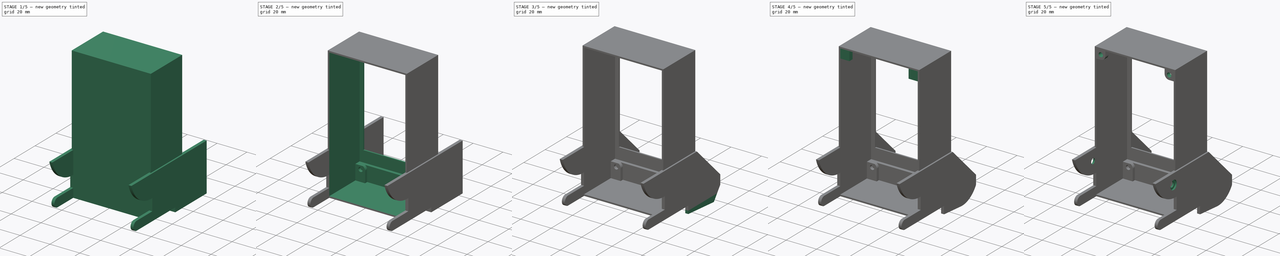
[diagram: build sequence overview — one tinted view per stage of 5, left to right]
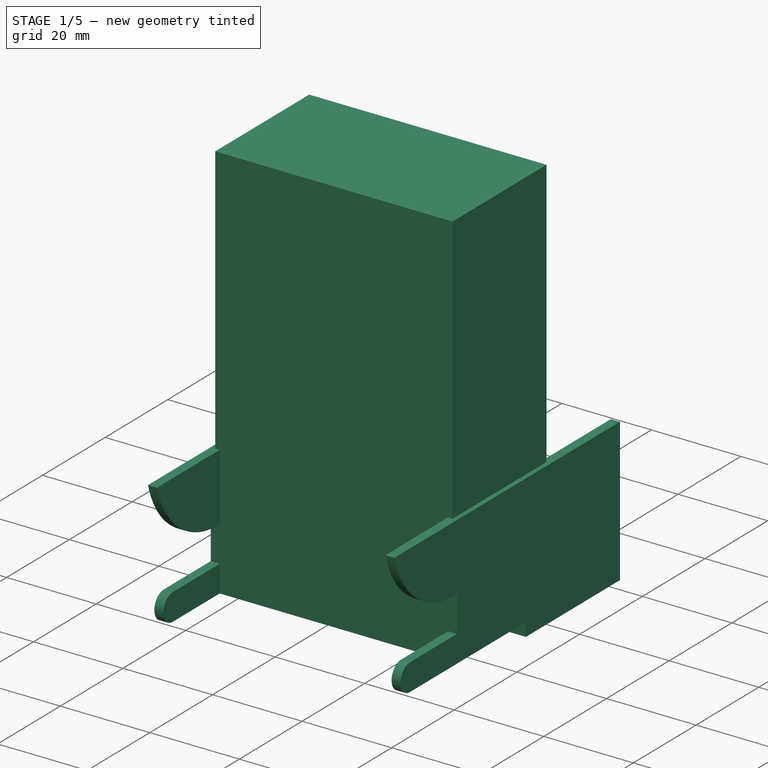
[diagram: stage 1 of 5 — iso view after this stage's code; geometry added in this stage tinted green]
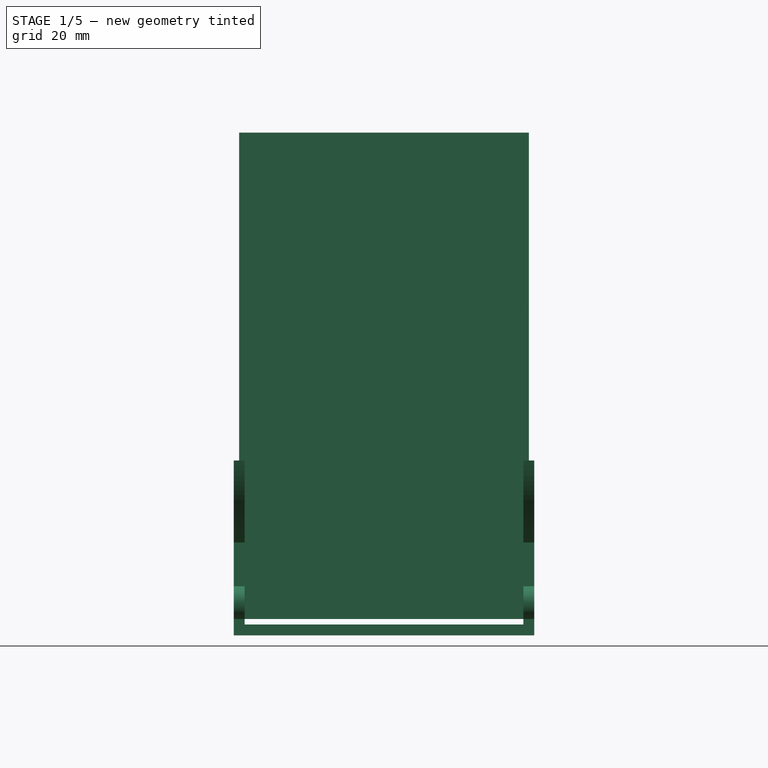
[diagram: stage 1 of 5 — front view after this stage's code; geometry added in this stage tinted green]
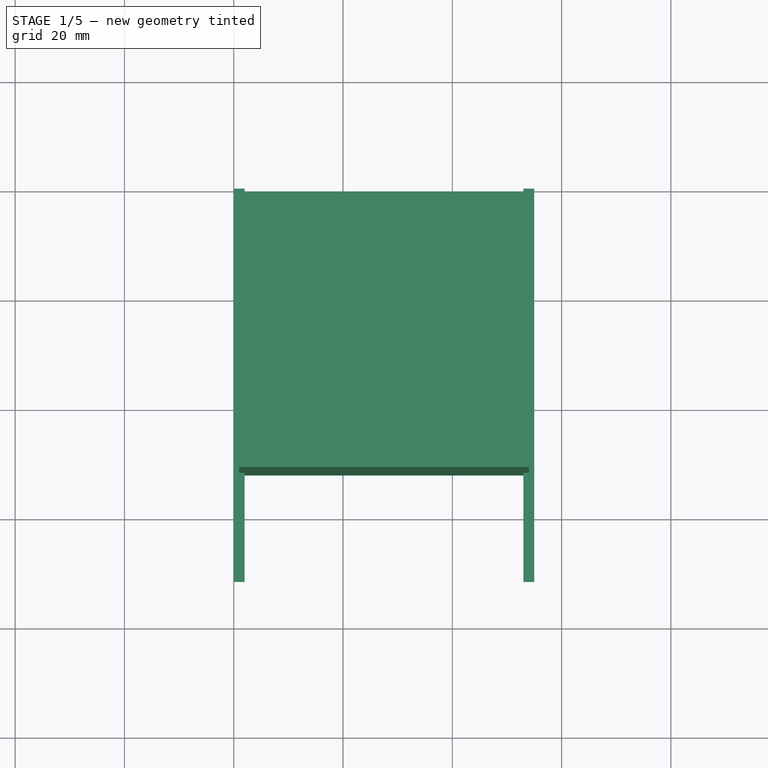
[diagram: stage 1 of 5 — top view after this stage's code; geometry added in this stage tinted green]
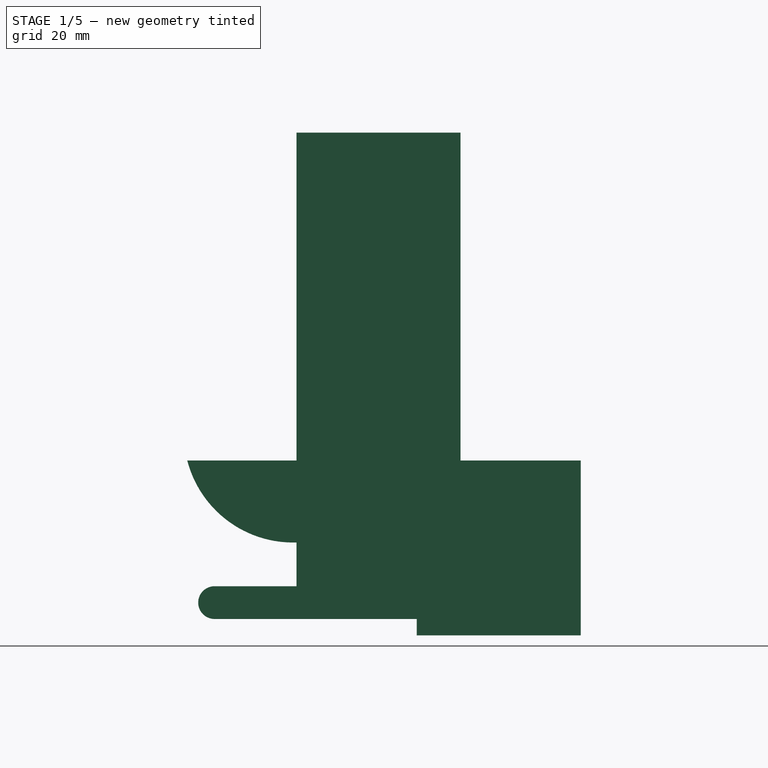
[diagram: stage 1 of 5 — right view after this stage's code; geometry added in this stage tinted green]
FCSTD DOCUMENT  (FreeCAD 0.19R)
Label: screen_case_front
License: All rights reserved
LicenseURL: http://en.wikipedia.org/wiki/All_rights_reserved
objects: Sketcher::SketchObject×17, PartDesign::Pocket×13, PartDesign::Pad×7, PartDesign::Fillet×3, PartDesign::Body×1
note: 64 computed .brp shape members not serialized (recipe doc carries the construction recipe); baked Part::Feature solids carry a one-line shape summary decoded from their .brp

FEATURE [Sketcher::SketchObject] Sketch
  FullyConstrained = true
  MapMode = 5
  Placement = pos=(0,0,0) rot=(0.57735,0.57735,0.57735;2.0944rad)
  Support = -> [YZ_Plane]
  sketch-geometry (9):
    g0: LineSegment StartX=0 StartY=0 StartZ=0 EndX=-30 EndY=0 EndZ=0
    g1: LineSegment StartX=-30 StartY=0 StartZ=0 EndX=-30 EndY=3 EndZ=0
    g2: LineSegment StartX=-30 StartY=3 StartZ=0 EndX=-67 EndY=3 EndZ=0
    g3: LineSegment StartX=-67 StartY=9 StartZ=0 EndX=-52 EndY=9 EndZ=0
    g4: LineSegment StartX=-52 StartY=9 StartZ=0 EndX=-52 EndY=17 EndZ=0
    g5: LineSegment StartX=-72 StartY=32 StartZ=0 EndX=0 EndY=32 EndZ=0
    g6: LineSegment StartX=0 StartY=32 StartZ=0 EndX=0 EndY=0 EndZ=0
    g7: ArcOfCircle CenterX=-67 CenterY=6 CenterZ=0 NormalX=0 NormalY=0 NormalZ=1 AngleXU=0 Radius=3 StartAngle=1.5708 EndAngle=4.71239
    g8: ArcOfCircle CenterX=-52.625 CenterY=37 CenterZ=0 NormalX=0 NormalY=0 NormalZ=1 AngleXU=0 Radius=20.0098 StartAngle=3.39415 EndAngle=4.74363
  constraints (28):
    c: Coincident(g-1,g0)
    c: PointOnObject(g0,g-1)
    c: Coincident(g0,g1)
    c: Vertical(g1)
    c: Coincident(g1,g2)
    c: Horizontal(g2)
    c: Horizontal(g3)
    c: Coincident(g3,g4)
    c: Vertical(g4)
    c: PointOnObject(g5,g-2)
    c: Horizontal(g5)
    c: Coincident(g5,g6)
    c: Coincident(g6,g0)
    c: Coincident(g7,g2)
    c: Coincident(g7,g3)
    c: Coincident(g8,g5)
    c: DistanceX(g0,g0) = 30
    c: Diameter(g7) = 6
    c: DistanceY(g1,g1) = 3
    c: DistanceX(g2,g2) = 37
    c: DistanceX(g2,g7) = 0
    c: DistanceX(g3,g7) = 0
    c: DistanceX(g3,g0) = 52
    c: DistanceY(g4,g4) = 8
    c: DistanceY(g4,g5) = 15
    c: Coincident(g8,g4)
    c: DistanceX(g5,g4) = 20
    c: DistanceY(g4,g8) = 20
FEATURE [PartDesign::Pad] Pad
  Direction = (1,1,1)
  Length = 55
  Length2 = 100
  Placement = pos=(0,0,0) rot=(0.57735,0.57735,0.57735;2.0944rad)
  Profile = -> Sketch
  Type = 0
FEATURE [Sketcher::SketchObject] Sketch001
  FullyConstrained = true
  MapMode = 5
  Placement = pos=(-9e-15,1.41e-14,32) rot=(0,0,-1;1.5708rad)
  Support = -> [Pad]
  sketch-geometry (4):
    g0: LineSegment StartX=0 StartY=2 StartZ=0 EndX=72 EndY=2 EndZ=0
    g1: LineSegment StartX=72 StartY=2 StartZ=0 EndX=72 EndY=53 EndZ=0
    g2: LineSegment StartX=72 StartY=53 StartZ=0 EndX=0 EndY=53 EndZ=0
    g3: LineSegment StartX=0 StartY=53 StartZ=0 EndX=0 EndY=2 EndZ=0
  constraints (12):
    c: Coincident(g0,g1)
    c: Coincident(g1,g2)
    c: Coincident(g2,g3)
    c: Coincident(g3,g0)
    c: Horizontal(g0)
    c: Horizontal(g2)
    c: Vertical(g1)
    c: Vertical(g3)
    c: PointOnObject(g0,g-2)
    c: DistanceY(g3,g3) = 51
    c: DistanceY(g-1,g0) = 2
    c: DistanceX(g2,g2) = 72
FEATURE [PartDesign::Pocket] Pocket
  BaseFeature = -> Pad
  Length = 30
  Length2 = 100
  Placement = pos=(0,0,0) rot=(0.57735,0.57735,0.57735;2.0944rad)
  Profile = -> Sketch001
  Type = 0
FEATURE [Sketcher::SketchObject] Sketch002
  FullyConstrained = true
  MapMode = 5
  Placement = pos=(53,-1.17e-14,3.23e-14) rot=(0.57735,0.57735,-0.57735;4.18879rad)
  Support = -> [Pocket]
  sketch-geometry (4):
    g0: LineSegment StartX=-52 StartY=-3 StartZ=0 EndX=-22 EndY=-3 EndZ=0
    g1: LineSegment StartX=-22 StartY=-3 StartZ=0 EndX=-22 EndY=-92 EndZ=0
    g2: LineSegment StartX=-22 StartY=-92 StartZ=0 EndX=-52 EndY=-92 EndZ=0
    g3: LineSegment StartX=-52 StartY=-92 StartZ=0 EndX=-52 EndY=-3 EndZ=0
  constraints (12):
    c: Coincident(g0,g1)
    c: Coincident(g1,g2)
    c: Coincident(g2,g3)
    c: Coincident(g3,g0)
    c: Horizontal(g0)
    c: Horizontal(g2)
    c: Vertical(g1)
    c: Vertical(g3)
    c: DistanceY(g0,g-1) = 3
    c: DistanceX(g0,g-1) = 52
    c: DistanceX(g0,g0) = 30
    c: DistanceY(g3,g3) = 89
FEATURE [PartDesign::Pad] Pad001
  BaseFeature = -> Pocket
  Direction = (1,1,1)
  Length = 51
  Length2 = 100
  Placement = pos=(0,0,0) rot=(0.57735,0.57735,0.57735;2.0944rad)
  Profile = -> Sketch002
  Type = 0
FEATURE [PartDesign::Pad] Pad002
  BaseFeature = -> Pad001
  Direction = (1,1,1)
  Length = 1
  Length2 = 100
  Placement = pos=(0,0,0) rot=(0.57735,0.57735,0.57735;2.0944rad)
  Profile = -> Pad001 [Face5]
  Type = 0
FEATURE [PartDesign::Pad] Pad003
  BaseFeature = -> Pad002
  Direction = (1,1,1)
  Length = 1
  Length2 = 100
  Placement = pos=(0,0,0) rot=(0.57735,0.57735,0.57735;2.0944rad)
  Profile = -> Pad002 [Face31]
  Type = 0
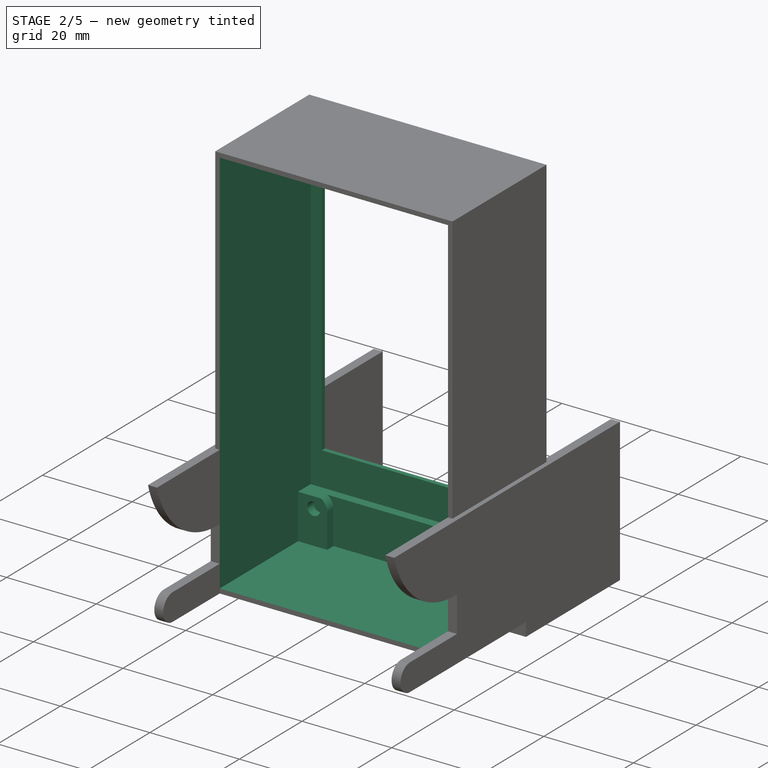
[diagram: stage 2 of 5 — iso view after this stage's code; geometry added in this stage tinted green]
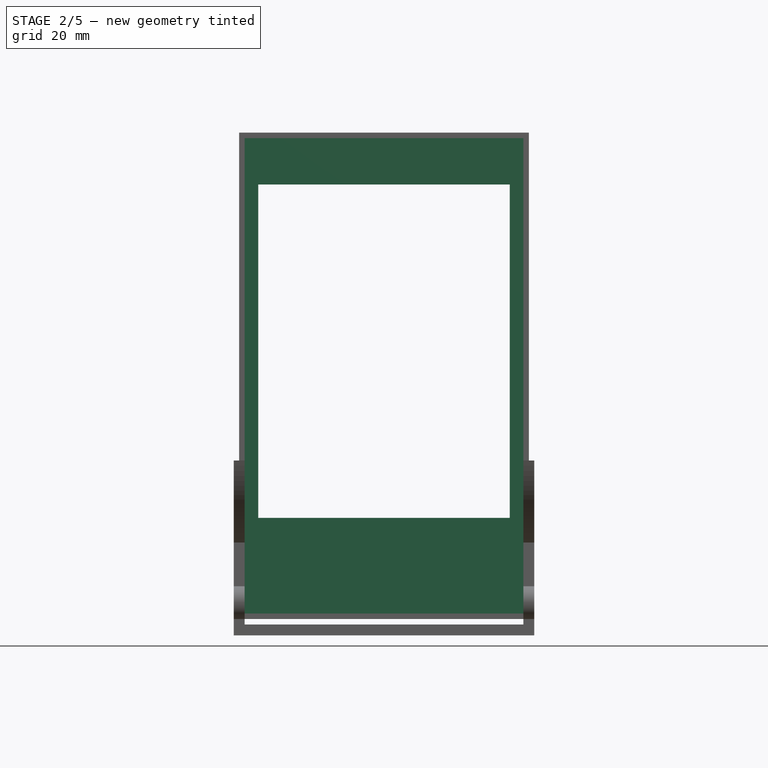
[diagram: stage 2 of 5 — front view after this stage's code; geometry added in this stage tinted green]
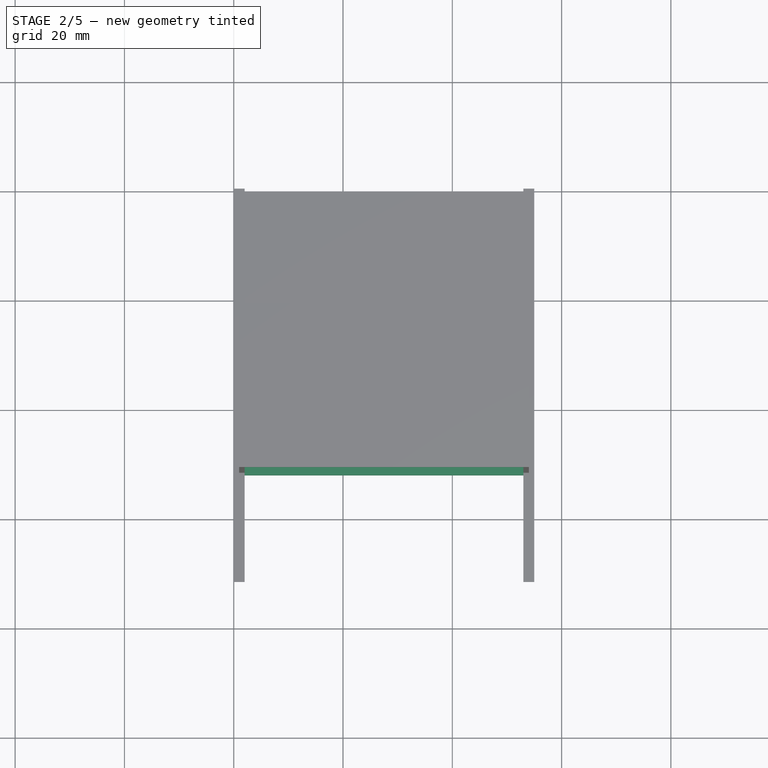
[diagram: stage 2 of 5 — top view after this stage's code; geometry added in this stage tinted green]
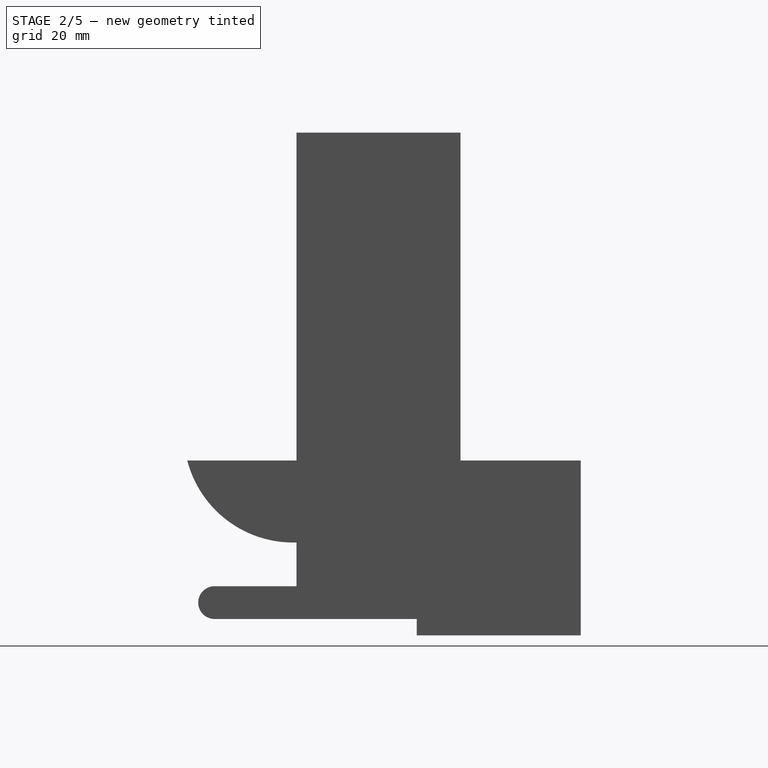
[diagram: stage 2 of 5 — right view after this stage's code; geometry added in this stage tinted green]
FEATURE [Sketcher::SketchObject] Sketch003
  FullyConstrained = true
  MapMode = 5
  Placement = pos=(-2.29e-14,-52,0) rot=(0.57735,0.57735,-0.57735;2.0944rad)
  Support = -> [Pad003]
  sketch-geometry (4):
    g0: LineSegment StartX=-4 StartY=2 StartZ=0 EndX=-91 EndY=2 EndZ=0
    g1: LineSegment StartX=-91 StartY=2 StartZ=0 EndX=-91 EndY=53 EndZ=0
    g2: LineSegment StartX=-91 StartY=53 StartZ=0 EndX=-4 EndY=53 EndZ=0
    g3: LineSegment StartX=-4 StartY=53 StartZ=0 EndX=-4 EndY=2 EndZ=0
  constraints (12):
    c: Coincident(g0,g1)
    c: Coincident(g1,g2)
    c: Coincident(g2,g3)
    c: Coincident(g3,g0)
    c: Horizontal(g0)
    c: Horizontal(g2)
    c: Vertical(g1)
    c: Vertical(g3)
    c: DistanceY(g1,g1) = 51
    c: DistanceX(g2,g2) = 87
    c: DistanceY(g-1,g0) = 2
    c: DistanceX(g0,g-1) = 4
FEATURE [PartDesign::Pocket] Pocket001
  BaseFeature = -> Pad003
  Length = 27
  Length2 = 100
  Placement = pos=(0,0,0) rot=(0.57735,0.57735,0.57735;2.0944rad)
  Profile = -> Sketch003
  Type = 0
FEATURE [Sketcher::SketchObject] Sketch004
  FullyConstrained = true
  MapMode = 5
  Placement = pos=(-1.05e-14,-25,0) rot=(0.57735,0.57735,-0.57735;2.0944rad)
  Support = -> [Pocket001]
  sketch-geometry (4):
    g0: LineSegment StartX=-14 StartY=2 StartZ=0 EndX=-85 EndY=2 EndZ=0
    g1: LineSegment StartX=-85 StartY=2 StartZ=0 EndX=-85 EndY=53 EndZ=0
    g2: LineSegment StartX=-85 StartY=53 StartZ=0 EndX=-14 EndY=53 EndZ=0
    g3: LineSegment StartX=-14 StartY=53 StartZ=0 EndX=-14 EndY=2 EndZ=0
  constraints (12):
    c: Coincident(g0,g1)
    c: Coincident(g1,g2)
    c: Coincident(g2,g3)
    c: Coincident(g3,g0)
    c: Horizontal(g0)
    c: Horizontal(g2)
    c: Vertical(g1)
    c: Vertical(g3)
    c: DistanceX(g2,g2) = 71
    c: DistanceY(g1,g1) = 51
    c: DistanceX(g0,g-1) = 14
    c: DistanceY(g-1,g0) = 2
FEATURE [PartDesign::Pocket] Pocket002
  BaseFeature = -> Pocket001
  Length = 2
  Length2 = 100
  Placement = pos=(0,0,0) rot=(0.57735,0.57735,0.57735;2.0944rad)
  Profile = -> Sketch004
  Type = 0
FEATURE [Sketcher::SketchObject] Sketch005
  FullyConstrained = true
  MapMode = 5
  Placement = pos=(-1.13e-14,-23,0) rot=(0.57735,0.57735,-0.57735;2.0944rad)
  Support = -> [Pocket002]
  sketch-geometry (8):
    g0: LineSegment StartX=-14 StartY=2 StartZ=0 EndX=-85 EndY=2 EndZ=0
    g1: LineSegment StartX=-85 StartY=2 StartZ=0 EndX=-85 EndY=53 EndZ=0
    g2: LineSegment StartX=-85 StartY=53 StartZ=0 EndX=-14 EndY=53 EndZ=0
    g3: LineSegment StartX=-14 StartY=53 StartZ=0 EndX=-14 EndY=2 EndZ=0
    g4: LineSegment StartX=-82.5 StartY=4.5 StartZ=0 EndX=-21.5 EndY=4.5 EndZ=0
    g5: LineSegment StartX=-21.5 StartY=4.5 StartZ=0 EndX=-21.5 EndY=50.5 EndZ=0
    g6: LineSegment StartX=-21.5 StartY=50.5 StartZ=0 EndX=-82.5 EndY=50.5 EndZ=0
    g7: LineSegment StartX=-82.5 StartY=50.5 StartZ=0 EndX=-82.5 EndY=4.5 EndZ=0
  constraints (24):
    c: Coincident(g0,g1)
    c: Coincident(g1,g2)
    c: Coincident(g2,g3)
    c: Coincident(g3,g0)
    c: Horizontal(g0)
    c: Horizontal(g2)
    c: Vertical(g1)
    c: Vertical(g3)
    c: DistanceX(g0,g-1) = 14
    c: DistanceY(g-1,g0) = 2
    c: DistanceY(g3,g3) = 51
    c: DistanceX(g2,g2) = 71
    c: Coincident(g4,g5)
    c: Coincident(g5,g6)
    c: Coincident(g6,g7)
    c: Coincident(g7,g4)
    c: Horizontal(g4)
    c: Horizontal(g6)
    c: Vertical(g5)
    c: Vertical(g7)
    c: DistanceX(g4,g0) = 7.5
    c: DistanceY(g0,g4) = 2.5
    c: DistanceY(g5,g2) = 2.5
    c: DistanceX(g0,g4) = 2.5
FEATURE [PartDesign::Pocket] Pocket003
  BaseFeature = -> Pocket002
  Length = 1
  Length2 = 100
  Placement = pos=(0,0,0) rot=(0.57735,0.57735,0.57735;2.0944rad)
  Profile = -> Sketch005
  Type = 0
FEATURE [Sketcher::SketchObject] Sketch006
  FullyConstrained = true
  MapMode = 5
  Placement = pos=(-1.05e-14,-25,0) rot=(0.57735,0.57735,-0.57735;2.0944rad)
  Support = -> [Pocket003]
  sketch-geometry (24):
    g0: Circle CenterX=-11.5 CenterY=5.5 CenterZ=0 NormalX=0 NormalY=0 NormalZ=1 AngleXU=0 Radius=1.45
    g1: Circle CenterX=-11.5 CenterY=49.5 CenterZ=0 NormalX=0 NormalY=0 NormalZ=1 AngleXU=0 Radius=1.45
    g2: Circle CenterX=-87.5 CenterY=5.5 CenterZ=0 NormalX=0 NormalY=0 NormalZ=1 AngleXU=0 Radius=1.45
    g3: Circle CenterX=-87.5 CenterY=49.5 CenterZ=0 NormalX=0 NormalY=0 NormalZ=1 AngleXU=0 Radius=1.45
    g4: LineSegment StartX=-4 StartY=2 StartZ=0 EndX=-14 EndY=2 EndZ=0
    g5: LineSegment StartX=-14 StartY=2 StartZ=0 EndX=-14 EndY=7.15831 EndZ=0
    g6: ArcOfCircle CenterX=-11.5 CenterY=5.5 CenterZ=0 NormalX=0 NormalY=0 NormalZ=1 AngleXU=0 Radius=3 StartAngle=1.5708 EndAngle=2.55591
    g7: LineSegment StartX=-14 StartY=47.8417 StartZ=0 EndX=-14 EndY=53 EndZ=0
    g8: ArcOfCircle CenterX=-11.5 CenterY=49.5 CenterZ=0 NormalX=0 NormalY=0 NormalZ=1 AngleXU=0 Radius=3 StartAngle=3.72728 EndAngle=4.71239
    g9: LineSegment StartX=-85 StartY=7.15831 StartZ=0 EndX=-85 EndY=2 EndZ=0
    g10: LineSegment StartX=-85 StartY=2 StartZ=0 EndX=-91 EndY=2 EndZ=0
    g11: ArcOfCircle CenterX=-87.5 CenterY=5.5 CenterZ=0 NormalX=0 NormalY=0 NormalZ=1 AngleXU=0 Radius=3 StartAngle=0.585686 EndAngle=1.5708
    g12: LineSegment StartX=-91 StartY=2 StartZ=0 EndX=-91 EndY=8.5 EndZ=0
    g13: LineSegment StartX=-91 StartY=8.5 StartZ=0 EndX=-87.5 EndY=8.5 EndZ=0
    g14: LineSegment StartX=-85 StartY=47.8417 StartZ=0 EndX=-85 EndY=53 EndZ=0
    g15: LineSegment StartX=-85 StartY=53 StartZ=0 EndX=-91 EndY=53 EndZ=0
    g16: LineSegment StartX=-91 StartY=53 StartZ=0 EndX=-91 EndY=46.5 EndZ=0
    g17: LineSegment StartX=-91 StartY=46.5 StartZ=0 EndX=-87.5 EndY=46.5 EndZ=0
    g18: ArcOfCircle CenterX=-87.5 CenterY=49.5 CenterZ=0 NormalX=0 NormalY=0 NormalZ=1 AngleXU=0 Radius=3 StartAngle=4.71239 EndAngle=5.6975
    g19: LineSegment StartX=-14 StartY=53 StartZ=0 EndX=-4 EndY=53 EndZ=0
    g20: LineSegment StartX=-4 StartY=53 StartZ=0 EndX=-4 EndY=46.5 EndZ=0
    g21: LineSegment StartX=-4 StartY=46.5 StartZ=0 EndX=-11.5 EndY=46.5 EndZ=0
    g22: LineSegment StartX=-11.5 StartY=8.5 StartZ=0 EndX=-4 EndY=8.5 EndZ=0
    g23: LineSegment StartX=-4 StartY=8.5 StartZ=0 EndX=-4 EndY=2 EndZ=0
  constraints (70):
    c: Diameter(g0) = 2.9
    c: DistanceX(g0,g-1) = 11.5
    c: DistanceY(g-1,g0) = 5.5
    c: Equal(g1,g0)
    c: Equal(g0,g3)
    c: Equal(g3,g2)
    c: DistanceY(g0,g1) = 44
    c: DistanceX(g0,g1) = 0
    c: DistanceY(g2,g0) = 0
    c: DistanceX(g3,g2) = 0
    c: DistanceY(g3,g1) = 0
    c: DistanceX(g2,g0) = 76
    c: Horizontal(g4)
    c: Coincident(g4,g5)
    c: Vertical(g5)
    c: Coincident(g6,g0)
    c: Coincident(g6,g5)
    c: Diameter(g6) = 6
    c: DistanceY(g-1,g4) = 2
    c: DistanceX(g4,g-1) = 14
    c: Vertical(g7)
    c: Coincident(g8,g1)
    c: Coincident(g8,g7)
    c: Equal(g5,g7)
    c: Equal(g6,g8)
    c: Vertical(g9)
    c: Coincident(g9,g10)
    c: Horizontal(g10)
    c: Coincident(g11,g2)
    c: Coincident(g11,g9)
    c: Diameter(g11) = 6
    c: DistanceX(g9,g-1) = 85
    c: DistanceY(g-1,g9) = 2
    c: Coincident(g12,g10)
    c: Vertical(g12)
    c: Coincident(g13,g12)
    c: Coincident(g13,g11)
    c: Horizontal(g13)
    c: DistanceY(g12,g12) = 6.5
    c: DistanceX(g10,g10) = 6
    c: Vertical(g14)
    c: Coincident(g14,g15)
    c: Horizontal(g15)
    c: Coincident(g15,g16)
    c: Vertical(g16)
    c: Coincident(g16,g17)
    c: Horizontal(g17)
    c: Coincident(g18,g3)
    c: Coincident(g18,g17)
    c: Coincident(g18,g14)
    c: DistanceX(g9,g14) = 0
    c: DistanceY(g9,g14) = 51
    c: Equal(g15,g10)
    c: Equal(g16,g12)
    c: Equal(g17,g13)
    c: Coincident(g7,g19)
    c: Horizontal(g19)
    c: Coincident(g19,g20)
    c: Vertical(g20)
    c: Coincident(g20,g21)
    c: Horizontal(g21)
    c: Tangent(g6,g22) = 1.5708
    c: Coincident(g22,g23)
    c: Coincident(g23,g4)
    c: Vertical(g23)
    c: Horizontal(g22)
    c: DistanceX(g4,g4) = 10
    c: Equal(g4,g19)
    c: Tangent(g21,g8) = 1.5708
    c: Equal(g21,g22)
FEATURE [PartDesign::Pad] Pad004
  BaseFeature = -> Pocket003
  Direction = (1,1,1)
  Length = 2
  Length2 = 100
  Placement = pos=(0,0,0) rot=(0.57735,0.57735,0.57735;2.0944rad)
  Profile = -> Sketch006
  Type = 0
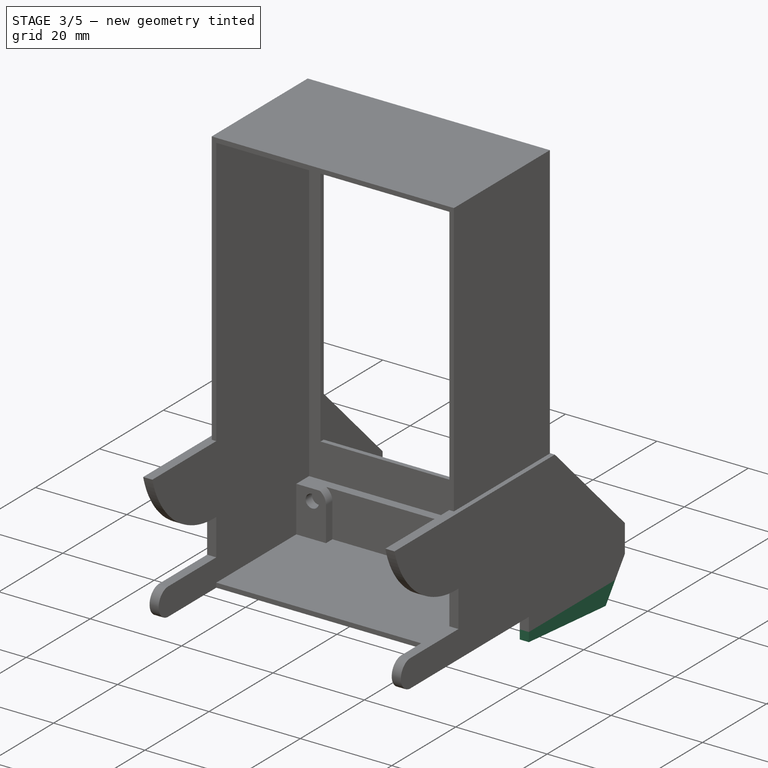
[diagram: stage 3 of 5 — iso view after this stage's code; geometry added in this stage tinted green]
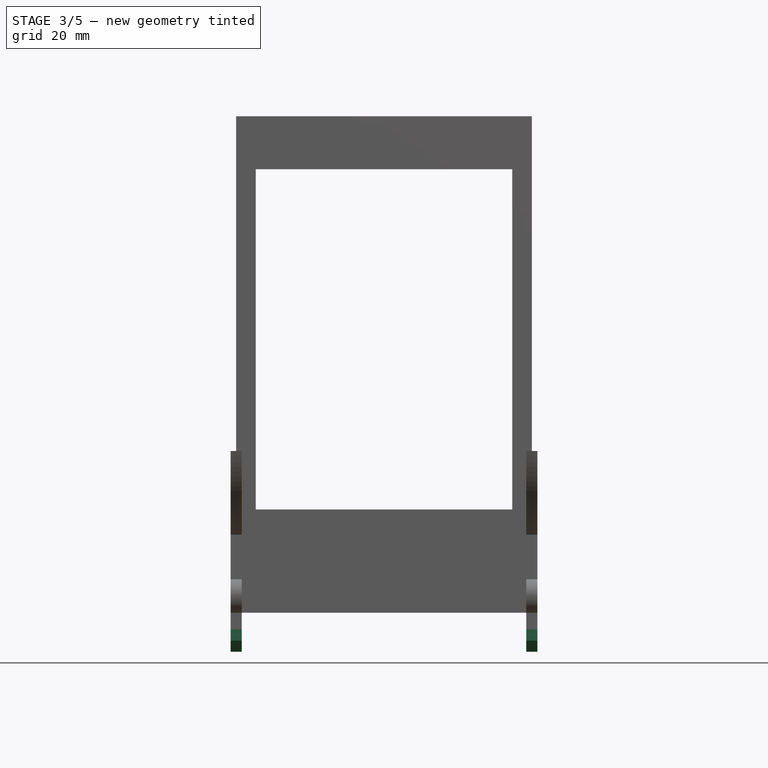
[diagram: stage 3 of 5 — front view after this stage's code; geometry added in this stage tinted green]
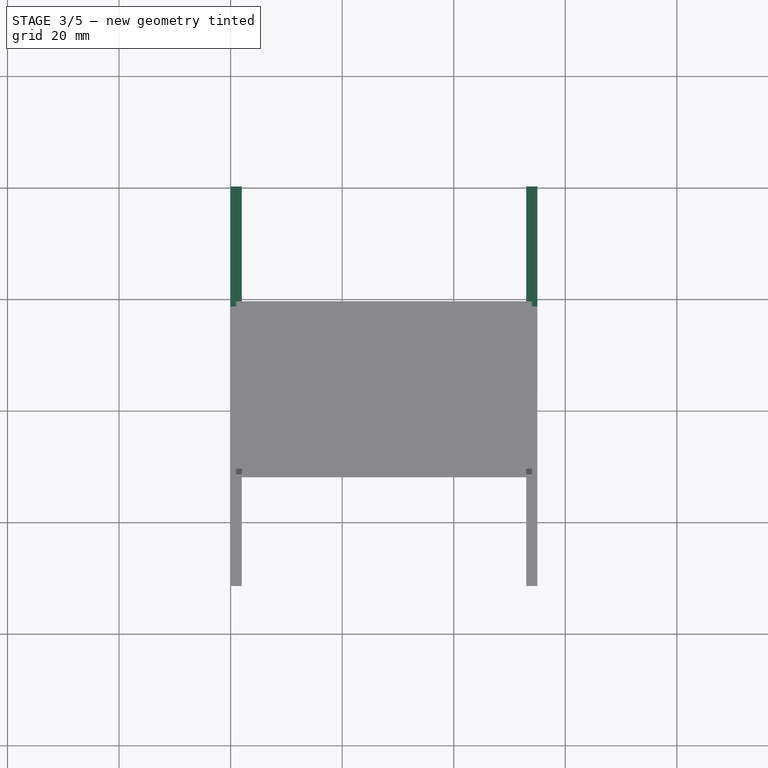
[diagram: stage 3 of 5 — top view after this stage's code; geometry added in this stage tinted green]
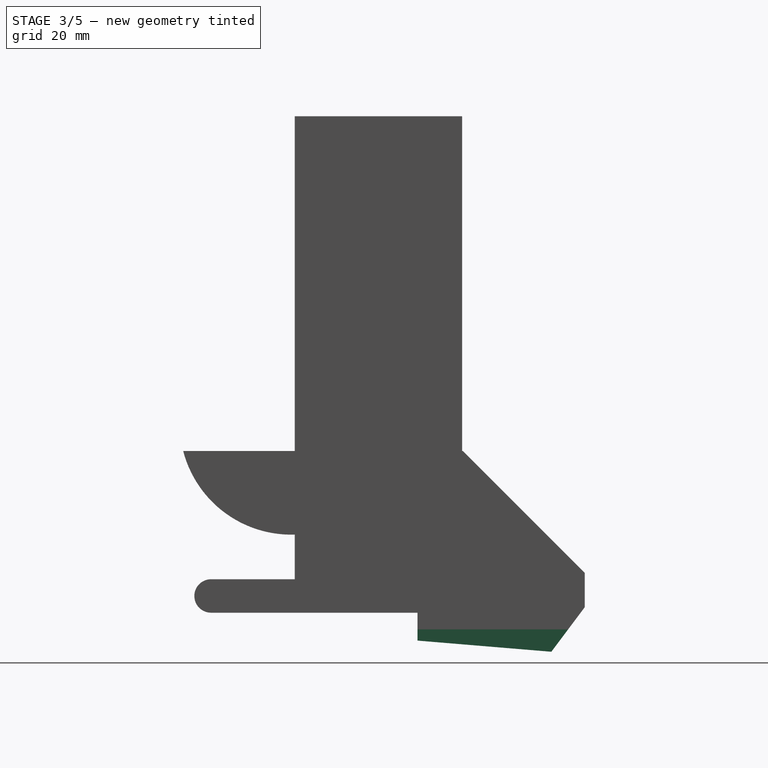
[diagram: stage 3 of 5 — right view after this stage's code; geometry added in this stage tinted green]
FEATURE [Sketcher::SketchObject] Sketch007
  FullyConstrained = false
  MapMode = 5
  Placement = pos=(55,-1.21e-14,1.21e-14) rot=(0.57735,0.57735,0.57735;2.0944rad)
  Support = -> [Pad004]
  sketch-geometry (3):
    g0: LineSegment StartX=0.114911 StartY=10 StartZ=0 EndX=0.114911 EndY=32 EndZ=0
    g1: LineSegment StartX=0.114911 StartY=32 StartZ=0 EndX=-21.8851 EndY=32 EndZ=0
    g2: LineSegment StartX=-21.8851 StartY=32 StartZ=0 EndX=0.114911 EndY=10 EndZ=0
  constraints (8):
    c: Horizontal(g1)
    c: Coincident(g1,g2)
    c: DistanceX(g1,g1) = 22
    c: Coincident(g2,g0)
    c: Vertical(g0)
    c: Coincident(g0,g1)
    c: DistanceY(g-1,g0) = 32
    c: DistanceY(g0,g0) = 22
FEATURE [PartDesign::Pocket] Pocket004
  BaseFeature = -> Pad004
  Length = 5
  Length2 = 100
  Placement = pos=(0,0,0) rot=(0.57735,0.57735,0.57735;2.0944rad)
  Profile = -> Sketch007
  Type = 1
FEATURE [Sketcher::SketchObject] Sketch008
  FullyConstrained = true
  MapMode = 5
  Placement = pos=(0,0,0) rot=(0.707107,0.707107,0;3.14159rad)
  Support = -> [Pocket004]
  sketch-geometry (4):
    g0: LineSegment StartX=-30 StartY=2 StartZ=0 EndX=0 EndY=2 EndZ=0
    g1: LineSegment StartX=0 StartY=2 StartZ=0 EndX=0 EndY=53 EndZ=0
    g2: LineSegment StartX=0 StartY=53 StartZ=0 EndX=-30 EndY=53 EndZ=0
    g3: LineSegment StartX=-30 StartY=53 StartZ=0 EndX=-30 EndY=2 EndZ=0
  constraints (12):
    c: Coincident(g0,g1)
    c: Coincident(g1,g2)
    c: Coincident(g2,g3)
    c: Coincident(g3,g0)
    c: Horizontal(g0)
    c: Horizontal(g2)
    c: Vertical(g1)
    c: Vertical(g3)
    c: PointOnObject(g1,g-2)
    c: DistanceY(g-1,g0) = 2
    c: DistanceY(g1,g1) = 51
    c: DistanceX(g2,g2) = 30
FEATURE [PartDesign::Pocket] Pocket005
  BaseFeature = -> Pocket004
  Length = 5
  Length2 = 100
  Placement = pos=(0,0,0) rot=(0.57735,0.57735,0.57735;2.0944rad)
  Profile = -> Sketch008
  Type = 2
FEATURE [PartDesign::Pad] Pad005
  BaseFeature = -> Pocket005
  Direction = (1,1,1)
  Length = 4
  Length2 = 100
  Placement = pos=(0,0,0) rot=(0.57735,0.57735,0.57735;2.0944rad)
  Profile = -> Pocket005 [Face15,Face69]
  Reversed = true
  Type = 0
FEATURE [Sketcher::SketchObject] Sketch009
  FullyConstrained = true
  MapMode = 5
  Placement = pos=(55,-4.29e-14,0) rot=(0.57735,0.57735,0.57735;2.0944rad)
  Support = -> [Pad005]
  sketch-geometry (3):
    g0: LineSegment StartX=-30 StartY=-2 StartZ=0 EndX=-6 EndY=-4 EndZ=0
    g1: LineSegment StartX=-6 StartY=-4 StartZ=0 EndX=-30 EndY=-4 EndZ=0
    g2: LineSegment StartX=-30 StartY=-4 StartZ=0 EndX=-30 EndY=-2 EndZ=0
  constraints (9):
    c: Coincident(g0,g1)
    c: Horizontal(g1)
    c: Coincident(g1,g2)
    c: Coincident(g2,g0)
    c: Vertical(g2)
    c: DistanceY(g2,g2) = 2
    c: DistanceY(g0,g-1) = 4
    c: DistanceX(g0,g-1) = 6
    c: DistanceX(g0,g-1) = 30
FEATURE [PartDesign::Pocket] Pocket006
  BaseFeature = -> Pad005
  Length = 5
  Length2 = 100
  Placement = pos=(0,0,0) rot=(0.57735,0.57735,0.57735;2.0944rad)
  Profile = -> Sketch009
  Type = 1
FEATURE [Sketcher::SketchObject] Sketch010
  FullyConstrained = true
  MapMode = 5
  Placement = pos=(55,-4.29e-14,0) rot=(0.57735,0.57735,0.57735;2.0944rad)
  Support = -> [Pocket006]
  sketch-geometry (3):
    g0: LineSegment StartX=0 StartY=-4 StartZ=0 EndX=-6 EndY=-4 EndZ=0
    g1: LineSegment StartX=-6 StartY=-4 StartZ=0 EndX=0 EndY=4 EndZ=0
    g2: LineSegment StartX=0 StartY=4 StartZ=0 EndX=0 EndY=-4 EndZ=0
  constraints (9):
    c: Horizontal(g0)
    c: Coincident(g0,g1)
    c: PointOnObject(g1,g-2)
    c: Coincident(g1,g2)
    c: Coincident(g2,g0)
    c: Vertical(g2)
    c: DistanceY(g0,g-1) = 4
    c: DistanceX(g0,g0) = 6
    c: DistanceY(g2,g2) = 8
FEATURE [PartDesign::Pocket] Pocket007
  BaseFeature = -> Pocket006
  Length = 5
  Length2 = 100
  Placement = pos=(0,0,0) rot=(0.57735,0.57735,0.57735;2.0944rad)
  Profile = -> Sketch010
  Type = 1
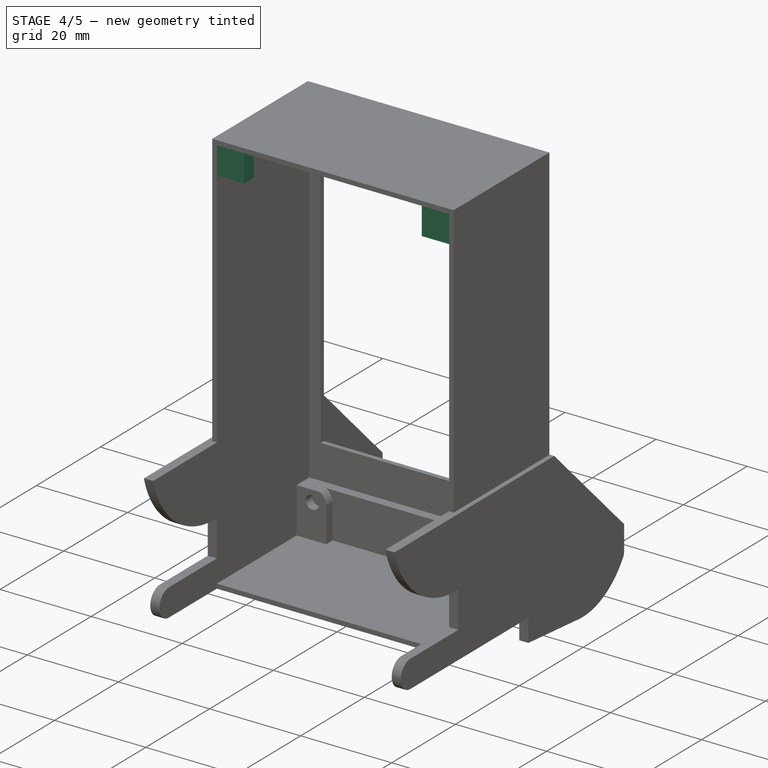
[diagram: stage 4 of 5 — iso view after this stage's code; geometry added in this stage tinted green]
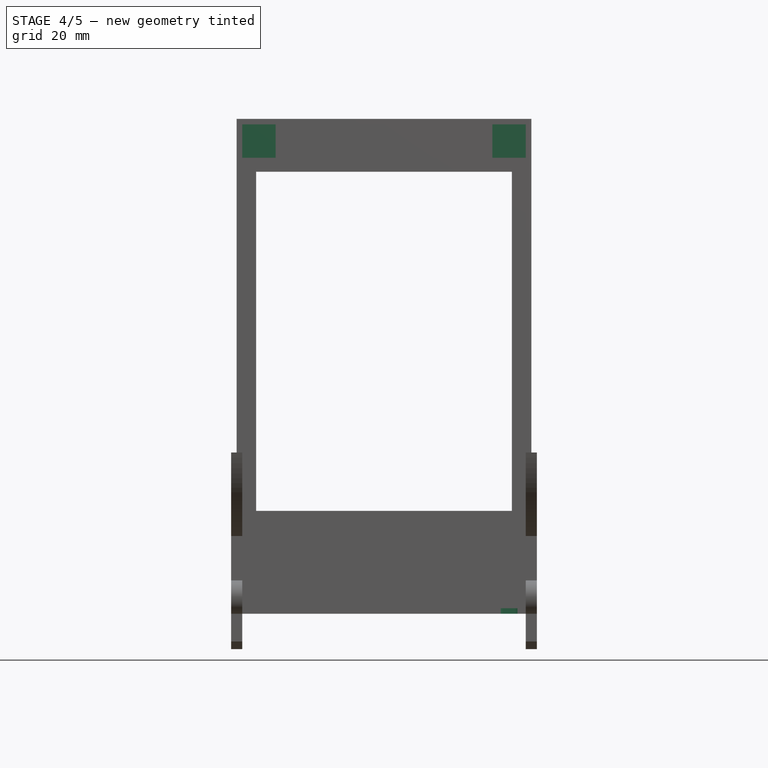
[diagram: stage 4 of 5 — front view after this stage's code; geometry added in this stage tinted green]
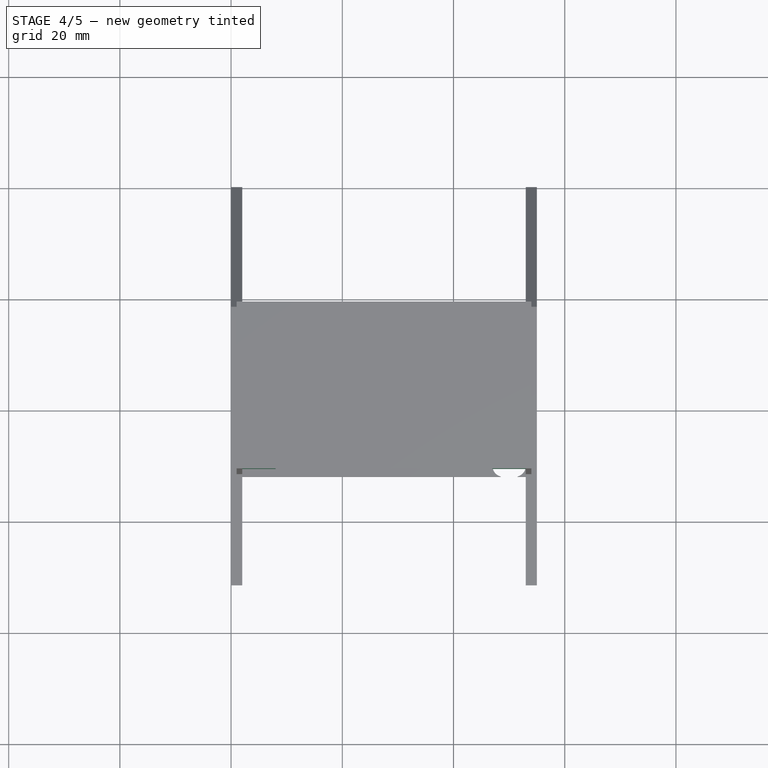
[diagram: stage 4 of 5 — top view after this stage's code; geometry added in this stage tinted green]
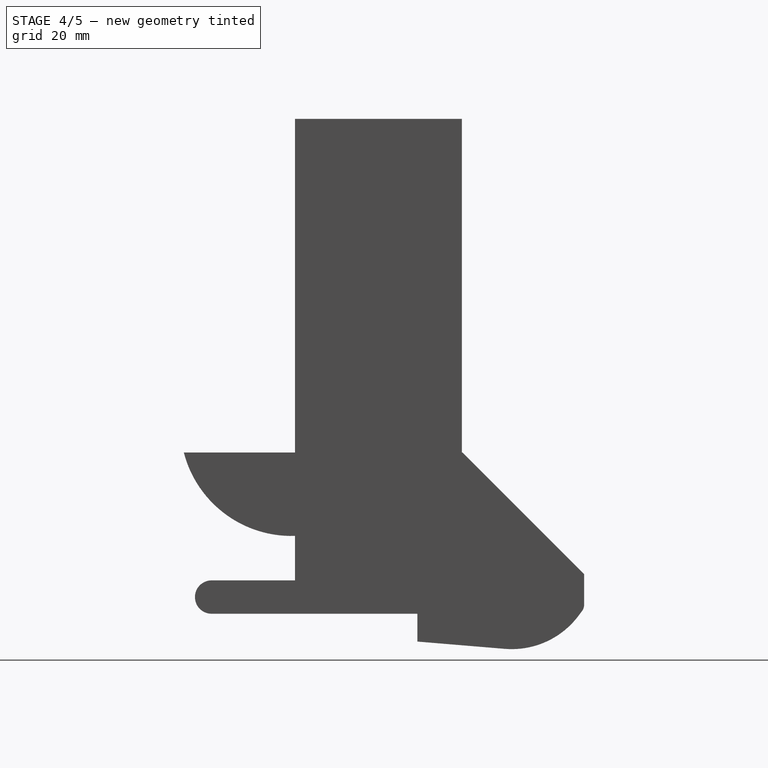
[diagram: stage 4 of 5 — right view after this stage's code; geometry added in this stage tinted green]
FEATURE [PartDesign::Fillet] Fillet
  Base = -> Pocket007 [Edge152,Edge55]
  BaseFeature = -> Pocket007
  Placement = pos=(0,0,0) rot=(0.57735,0.57735,0.57735;2.0944rad)
  Radius = 15
  SupportTransform = false
FEATURE [PartDesign::Fillet] Fillet001
  Base = -> Fillet [Edge157,Edge26]
  BaseFeature = -> Fillet
  Placement = pos=(0,0,0) rot=(0.57735,0.57735,0.57735;2.0944rad)
  Radius = 2
  SupportTransform = false
FEATURE [Sketcher::SketchObject] Sketch011
  FullyConstrained = true
  MapMode = 5
  Placement = pos=(-2e-15,7e-16,3) rot=(0.707107,0.707107,0;3.14159rad)
  Support = -> [Fillet001]
  sketch-geometry (6):
    g0: ArcOfCircle CenterX=-50 CenterY=49 CenterZ=0 NormalX=0 NormalY=0 NormalZ=1 AngleXU=0 Radius=2 StartAngle=3.39427 EndAngle=6.28319
    g1: ArcOfCircle CenterX=-50 CenterY=51 CenterZ=0 NormalX=0 NormalY=0 NormalZ=1 AngleXU=0 Radius=2 StartAngle=5e-16 EndAngle=2.88891
    g2: LineSegment StartX=-48 StartY=49 StartZ=0 EndX=-48 EndY=51 EndZ=0
    g3: LineSegment StartX=-51.9365 StartY=48.5 StartZ=0 EndX=-52 EndY=48.5 EndZ=0
    g4: LineSegment StartX=-52 StartY=48.5 StartZ=0 EndX=-52 EndY=51.5 EndZ=0
    g5: LineSegment StartX=-52 StartY=51.5 StartZ=0 EndX=-51.9365 EndY=51.5 EndZ=0
  constraints (18):
    c: Diameter(g0) = 4
    c: Equal(g1,g0)
    c: DistanceX(g1,g0) = 0
    c: DistanceY(g0,g1) = 2
    c: Tangent(g2,g0) = -1.5708
    c: Tangent(g2,g1) = -1.5708
    c: DistanceX(g0,g-1) = 50
    c: DistanceY(g-1,g0) = 49
    c: DistanceY(g0,g1) = 3
    c: Coincident(g3,g4)
    c: Coincident(g4,g5)
    c: Coincident(g5,g1)
    c: Vertical(g4)
    c: Horizontal(g3)
    c: Horizontal(g5)
    c: Coincident(g3,g0)
    c: Equal(g5,g3)
    c: DistanceX(g3,g0) = 2
FEATURE [PartDesign::Pocket] Pocket008
  BaseFeature = -> Fillet001
  Length = 5
  Length2 = 100
  Placement = pos=(0,0,0) rot=(0.57735,0.57735,0.57735;2.0944rad)
  Profile = -> Sketch011
  Type = 2
FEATURE [Sketcher::SketchObject] Sketch012
  FullyConstrained = true
  MapMode = 5
  Placement = pos=(-1e-14,0,91) rot=(0.707107,0.707107,0;3.14159rad)
  Support = -> [Pocket008]
  sketch-geometry (8):
    g0: LineSegment StartX=-52 StartY=2 StartZ=0 EndX=-49 EndY=2 EndZ=0
    g1: LineSegment StartX=-49 StartY=2 StartZ=0 EndX=-49 EndY=8 EndZ=0
    g2: LineSegment StartX=-49 StartY=8 StartZ=0 EndX=-52 EndY=8 EndZ=0
    g3: LineSegment StartX=-52 StartY=8 StartZ=0 EndX=-52 EndY=2 EndZ=0
    g4: LineSegment StartX=-52 StartY=53 StartZ=0 EndX=-49 EndY=53 EndZ=0
    g5: LineSegment StartX=-49 StartY=53 StartZ=0 EndX=-49 EndY=47 EndZ=0
    g6: LineSegment StartX=-49 StartY=47 StartZ=0 EndX=-52 EndY=47 EndZ=0
    g7: LineSegment StartX=-52 StartY=47 StartZ=0 EndX=-52 EndY=53 EndZ=0
  constraints (24):
    c: Coincident(g0,g1)
    c: Coincident(g1,g2)
    c: Coincident(g2,g3)
    c: Coincident(g3,g0)
    c: Horizontal(g0)
    c: Horizontal(g2)
    c: Vertical(g1)
    c: Vertical(g3)
    c: Coincident(g4,g5)
    c: Coincident(g5,g6)
    c: Coincident(g6,g7)
    c: Coincident(g7,g4)
    c: Horizontal(g4)
    c: Horizontal(g6)
    c: Vertical(g5)
    c: Vertical(g7)
    c: DistanceY(g3,g3) = 6
    c: DistanceX(g2,g2) = 3
    c: DistanceX(g0,g-1) = 52
    c: DistanceY(g-1,g0) = 2
    c: Equal(g2,g6)
    c: Equal(g1,g5)
    c: DistanceX(g5,g1) = 0
    c: DistanceY(g0,g4) = 51
FEATURE [PartDesign::Pad] Pad006
  BaseFeature = -> Pocket008
  Direction = (1,1,1)
  Length = 6
  Length2 = 100
  Placement = pos=(0,0,0) rot=(0.57735,0.57735,0.57735;2.0944rad)
  Profile = -> Sketch012
  Type = 0
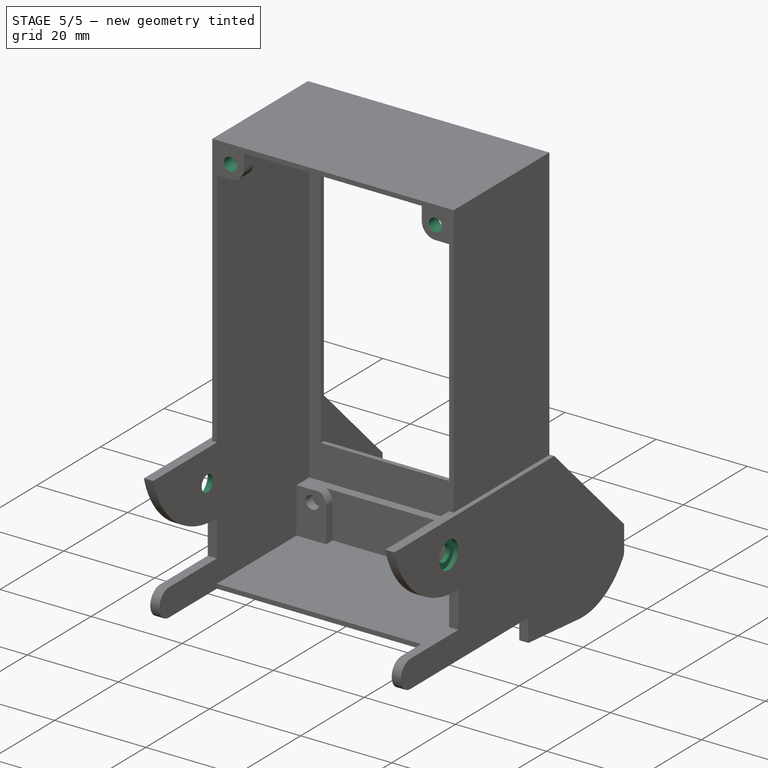
[diagram: stage 5 of 5 — iso view after this stage's code; geometry added in this stage tinted green]
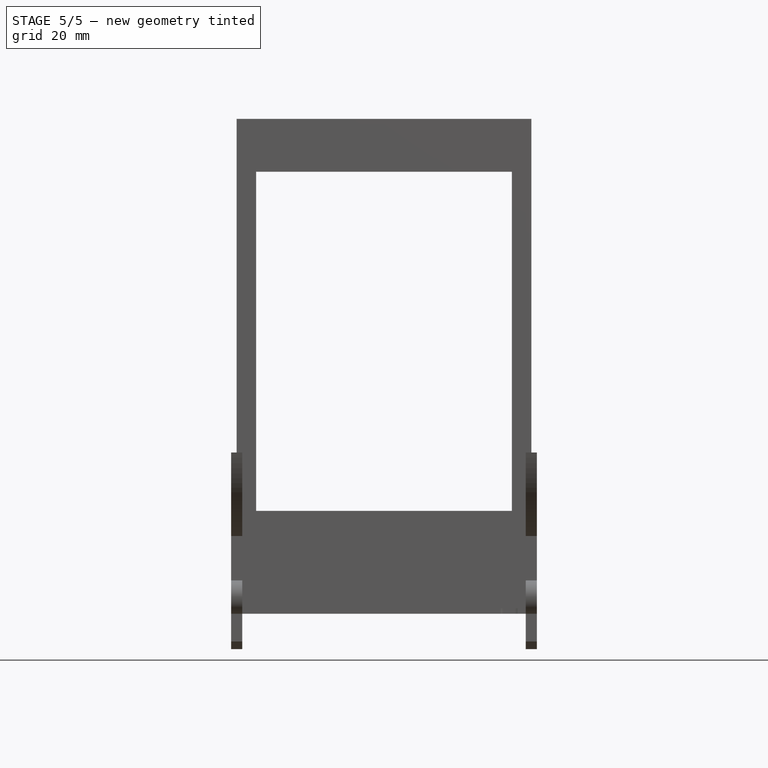
[diagram: stage 5 of 5 — front view after this stage's code; geometry added in this stage tinted green]
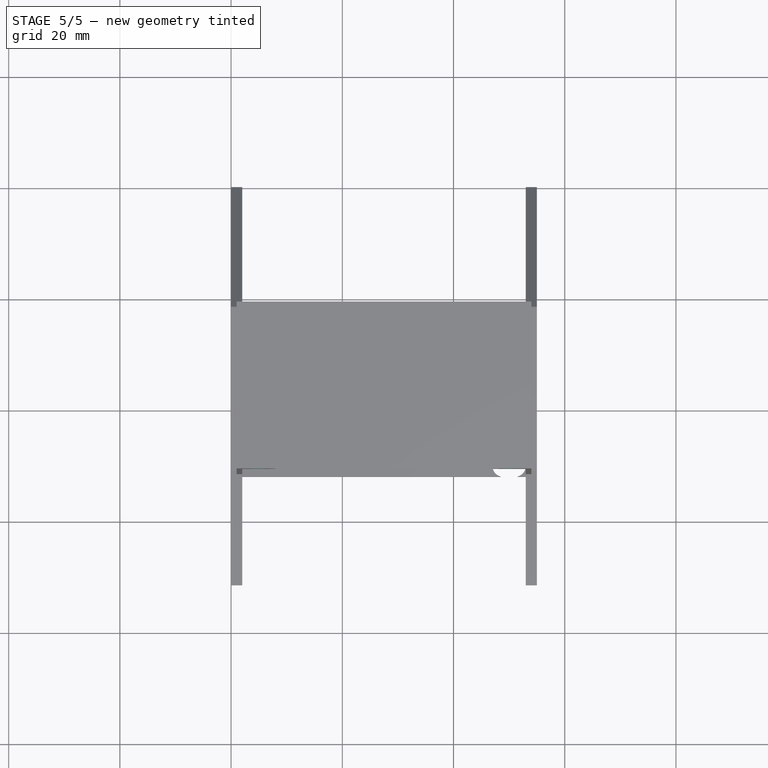
[diagram: stage 5 of 5 — top view after this stage's code; geometry added in this stage tinted green]
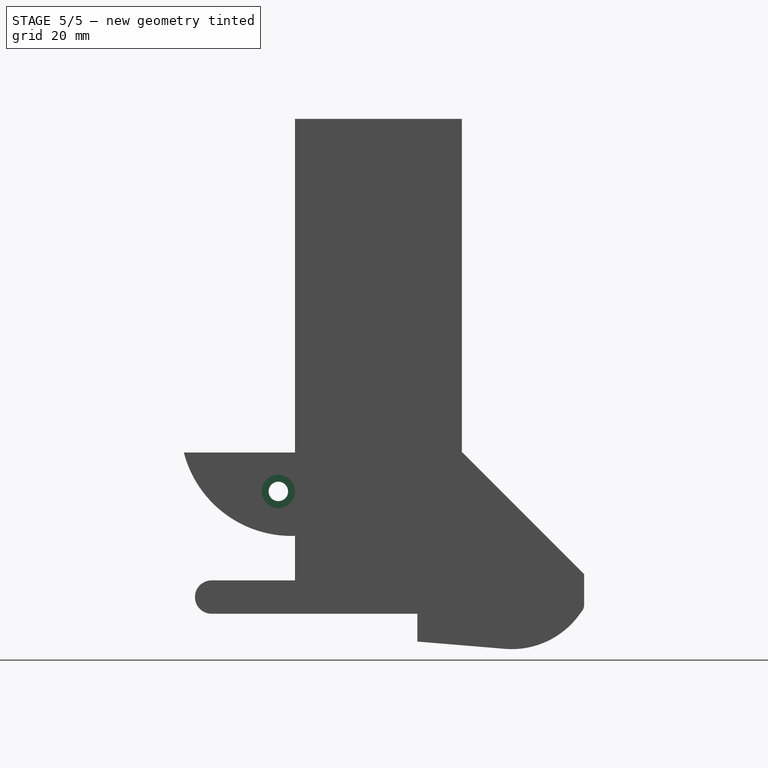
[diagram: stage 5 of 5 — right view after this stage's code; geometry added in this stage tinted green]
FEATURE [Sketcher::SketchObject] Sketch013
  FullyConstrained = true
  MapMode = 5
  Placement = pos=(-1.14e-14,-52,5.77e-14) rot=(0.57735,0.57735,-0.57735;2.0944rad)
  Support = -> [Pad006]
  sketch-geometry (10):
    g0: Circle CenterX=-88 CenterY=5 CenterZ=0 NormalX=0 NormalY=0 NormalZ=1 AngleXU=0 Radius=1.45
    g1: Circle CenterX=-88 CenterY=50 CenterZ=0 NormalX=0 NormalY=0 NormalZ=1 AngleXU=0 Radius=1.45
    g2: LineSegment StartX=-91 StartY=2 StartZ=0 EndX=-85 EndY=2 EndZ=0
    g3: LineSegment StartX=-85 StartY=2 StartZ=0 EndX=-85 EndY=8 EndZ=0
    g4: LineSegment StartX=-85 StartY=8 StartZ=0 EndX=-91 EndY=8 EndZ=0
    g5: LineSegment StartX=-91 StartY=8 StartZ=0 EndX=-91 EndY=2 EndZ=0
    g6: LineSegment StartX=-91 StartY=47 StartZ=0 EndX=-85 EndY=47 EndZ=0
    g7: LineSegment StartX=-85 StartY=47 StartZ=0 EndX=-85 EndY=53 EndZ=0
    g8: LineSegment StartX=-85 StartY=53 StartZ=0 EndX=-91 EndY=53 EndZ=0
    g9: LineSegment StartX=-91 StartY=53 StartZ=0 EndX=-91 EndY=47 EndZ=0
  constraints (30):
    c: Diameter(g0) = 2.9
    c: Equal(g0,g1)
    c: Coincident(g2,g3)
    c: Coincident(g3,g4)
    c: Coincident(g4,g5)
    c: Coincident(g5,g2)
    c: Horizontal(g2)
    c: Horizontal(g4)
    c: Vertical(g3)
    c: Vertical(g5)
    c: DistanceX(g2,g-1) = 91
    c: DistanceY(g-1,g2) = 2
    c: DistanceY(g5,g5) = 6
    c: DistanceX(g4,g4) = 6
    c: DistanceY(g2,g0) = 3
    c: DistanceX(g2,g0) = 3
    c: Coincident(g6,g7)
    c: Coincident(g7,g8)
    c: Coincident(g8,g9)
    c: Coincident(g9,g6)
    c: Horizontal(g6)
    c: Horizontal(g8)
    c: Vertical(g7)
    c: Vertical(g9)
    c: DistanceY(g2,g8) = 51
    c: DistanceX(g6,g4) = 0
    c: DistanceY(g9,g9) = 6
    c: DistanceX(g8,g8) = 6
    c: DistanceX(g8,g1) = 3
    c: DistanceY(g1,g8) = 3
FEATURE [PartDesign::Pocket] Pocket009
  BaseFeature = -> Pad006
  Length = 3
  Length2 = 100
  Placement = pos=(0,0,0) rot=(0.57735,0.57735,0.57735;2.0944rad)
  Profile = -> Sketch013
  Type = 0
FEATURE [PartDesign::Fillet] Fillet002
  Base = -> Pocket009 [Edge222,Edge128]
  BaseFeature = -> Pocket009
  Placement = pos=(0,0,0) rot=(0.57735,0.57735,0.57735;2.0944rad)
  Radius = 3
  SupportTransform = false
FEATURE [Sketcher::SketchObject] Sketch014
  FullyConstrained = true
  MapMode = 5
  Placement = pos=(55,-1.21e-14,1.21e-14) rot=(0.57735,0.57735,0.57735;2.0944rad)
  Support = -> [Fillet002]
  sketch-geometry (5):
    g0: Circle CenterX=-55 CenterY=25 CenterZ=0 NormalX=0 NormalY=0 NormalZ=1 AngleXU=0 Radius=3
    g1: LineSegment StartX=-52 StartY=28 StartZ=0 EndX=-58 EndY=28 EndZ=0
    g2: LineSegment StartX=-58 StartY=28 StartZ=0 EndX=-58 EndY=3 EndZ=0
    g3: LineSegment StartX=-58 StartY=3 StartZ=0 EndX=-52 EndY=3 EndZ=0
    g4: LineSegment StartX=-52 StartY=3 StartZ=0 EndX=-52 EndY=28 EndZ=0
  constraints (15):
    c: Coincident(g1,g2)
    c: Coincident(g2,g3)
    c: Coincident(g3,g4)
    c: Coincident(g4,g1)
    c: Horizontal(g1)
    c: Horizontal(g3)
    c: Vertical(g2)
    c: Vertical(g4)
    c: DistanceX(g1,g-1) = 52
    c: DistanceY(g-1,g3) = 3
    c: DistanceY(g4,g4) = 25
    c: DistanceX(g1,g1) = 6
    c: DistanceX(g0,g1) = 3
    c: DistanceY(g0,g1) = 3
    c: Diameter(g0) = 6
FEATURE [PartDesign::Pocket] Pocket010
  BaseFeature = -> Fillet002
  Length = 1
  Length2 = 100
  Placement = pos=(0,0,0) rot=(0.57735,0.57735,0.57735;2.0944rad)
  Profile = -> Sketch014
  Type = 0
FEATURE [Sketcher::SketchObject] Sketch015
  FullyConstrained = true
  MapMode = 5
  Placement = pos=(54,-4.27e-14,7.4e-14) rot=(0.57735,0.57735,0.57735;2.0944rad)
  Support = -> [Pocket010]
  sketch-geometry (5):
    g0: LineSegment StartX=-52 StartY=28 StartZ=0 EndX=-58 EndY=28 EndZ=0
    g1: LineSegment StartX=-58 StartY=28 StartZ=0 EndX=-58 EndY=3 EndZ=0
    g2: LineSegment StartX=-58 StartY=3 StartZ=0 EndX=-52 EndY=3 EndZ=0
    g3: LineSegment StartX=-52 StartY=3 StartZ=0 EndX=-52 EndY=28 EndZ=0
    g4: Circle CenterX=-55 CenterY=25 CenterZ=0 NormalX=0 NormalY=0 NormalZ=1 AngleXU=0 Radius=1.75
  constraints (15):
    c: Coincident(g0,g1)
    c: Coincident(g1,g2)
    c: Coincident(g2,g3)
    c: Coincident(g3,g0)
    c: Horizontal(g0)
    c: Horizontal(g2)
    c: Vertical(g1)
    c: Vertical(g3)
    c: DistanceY(g-1,g2) = 3
    c: DistanceX(g2,g-1) = 52
    c: DistanceY(g3,g3) = 25
    c: DistanceX(g0,g0) = 6
    c: DistanceX(g4,g0) = 3
    c: DistanceY(g4,g0) = 3
    c: Diameter(g4) = 3.5
FEATURE [PartDesign::Pocket] Pocket011
  BaseFeature = -> Pocket010
  Length = 5
  Length2 = 100
  Placement = pos=(0,0,0) rot=(0.57735,0.57735,0.57735;2.0944rad)
  Profile = -> Sketch015
  Type = 1
FEATURE [Sketcher::SketchObject] Sketch016
  FullyConstrained = true
  MapMode = 5
  Placement = pos=(-1e-16,0,0) rot=(0.57735,0.57735,-0.57735;4.18879rad)
  Support = -> [Pocket011]
  sketch-geometry (5):
    g0: LineSegment StartX=-52 StartY=-3 StartZ=0 EndX=-58 EndY=-3 EndZ=0
    g1: LineSegment StartX=-58 StartY=-3 StartZ=0 EndX=-58 EndY=-28 EndZ=0
    g2: LineSegment StartX=-58 StartY=-28 StartZ=0 EndX=-52 EndY=-28 EndZ=0
    g3: LineSegment StartX=-52 StartY=-28 StartZ=0 EndX=-52 EndY=-3 EndZ=0
    g4: Circle CenterX=-55 CenterY=-25 CenterZ=0 NormalX=0 NormalY=0 NormalZ=1 AngleXU=0 Radius=3
  constraints (15):
    c: Coincident(g0,g1)
    c: Coincident(g1,g2)
    c: Coincident(g2,g3)
    c: Coincident(g3,g0)
    c: Horizontal(g0)
    c: Horizontal(g2)
    c: Vertical(g1)
    c: Vertical(g3)
    c: DistanceX(g0,g-1) = 52
    c: DistanceY(g0,g-1) = 3
    c: DistanceY(g3,g3) = 25
    c: DistanceX(g0,g0) = 6
    c: DistanceX(g4,g2) = 3
    c: DistanceY(g2,g4) = 3
    c: Diameter(g4) = 6
FEATURE [PartDesign::Pocket] Pocket012
  BaseFeature = -> Pocket011
  Length = 1
  Length2 = 100
  Placement = pos=(0,0,0) rot=(0.57735,0.57735,0.57735;2.0944rad)
  Profile = -> Sketch016
  Type = 0
FEATURE [PartDesign::Body] Body
  Group = -> [Sketch,Pad,Sketch001,Pocket,Sketch002,Pad001,Pad002,Pad003,Sketch003,Pocket001,Sketch004,Pocket002,Sketch005,Pocket003,Sketch006,Pad004,Sketch007,Pocket004,Sketch008,Pocket005,Pad005,Sketch009,Pocket006,Sketch010,Pocket007,Fillet,Fillet001,Sketch011,Pocket008,Sketch012,Pad006,Sketch013,Pocket009,Fillet002,Sketch014,Pocket010,Sketch015,Pocket011,Sketch016,Pocket012]
  Origin = -> Origin
  Tip = -> Pocket012
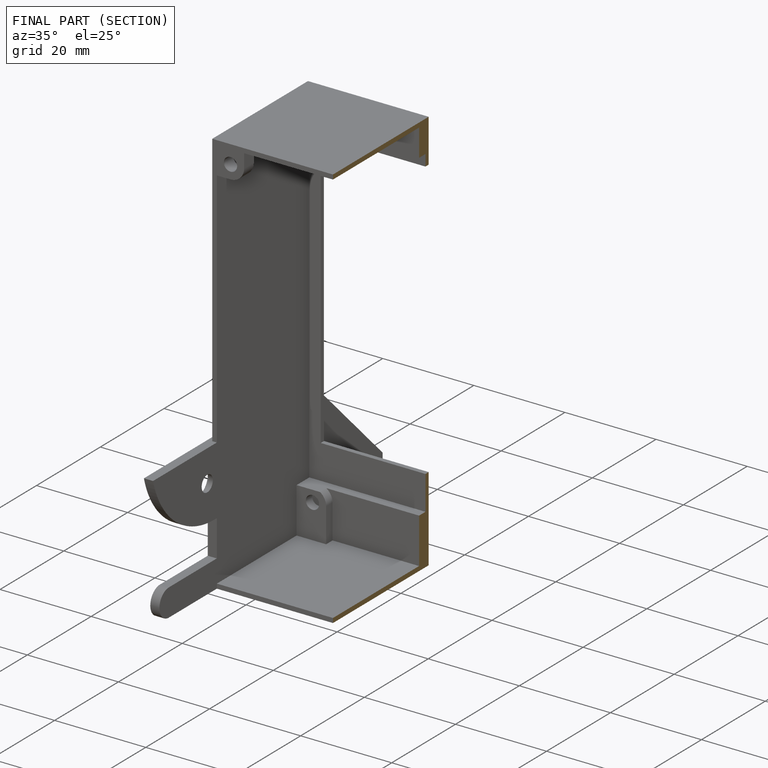
[diagram: finished part — half-section view (interior)]
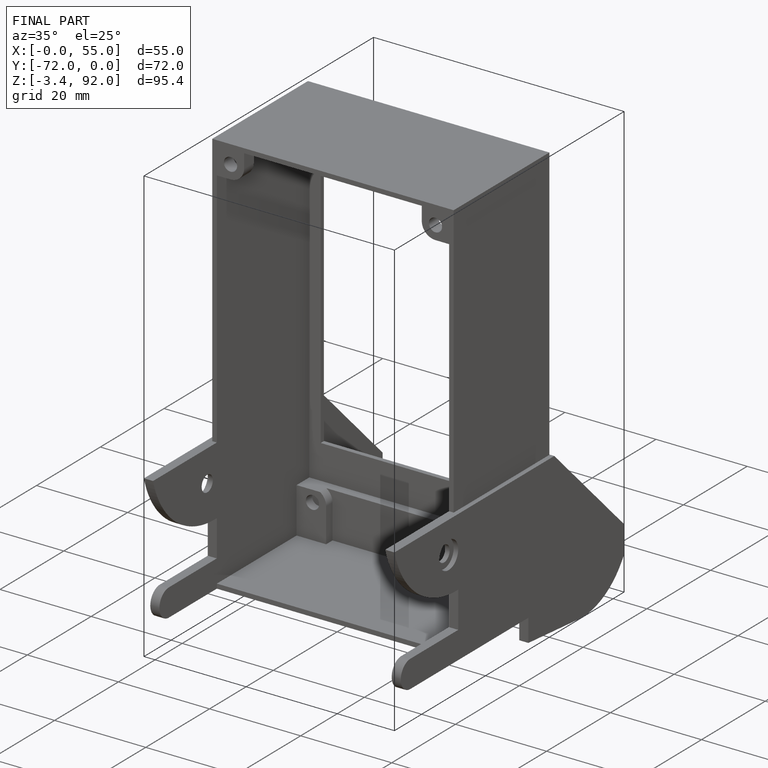
[diagram: finished part — iso view with bounding-box wireframe]
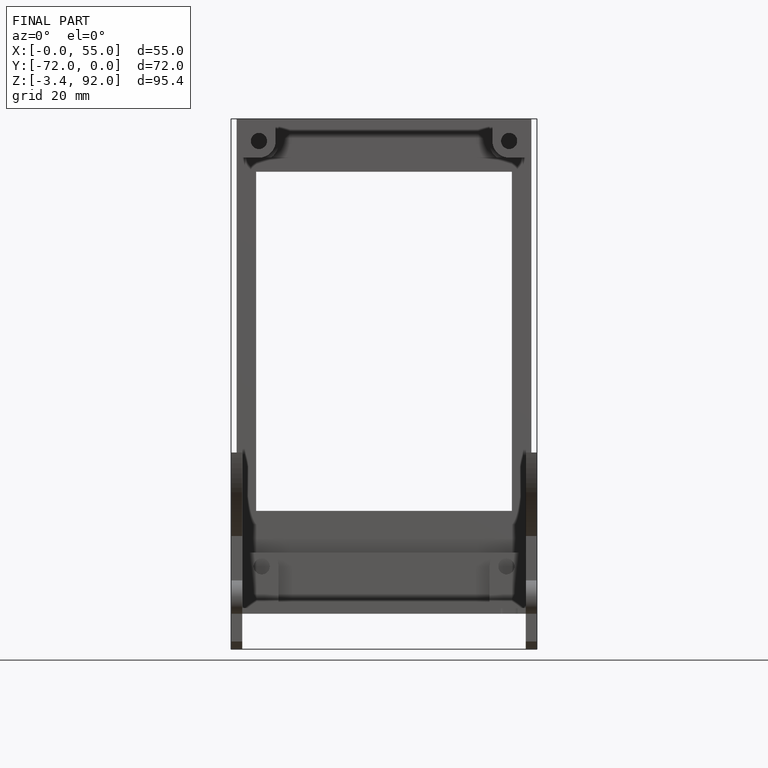
[diagram: finished part — front view with bounding-box wireframe]
